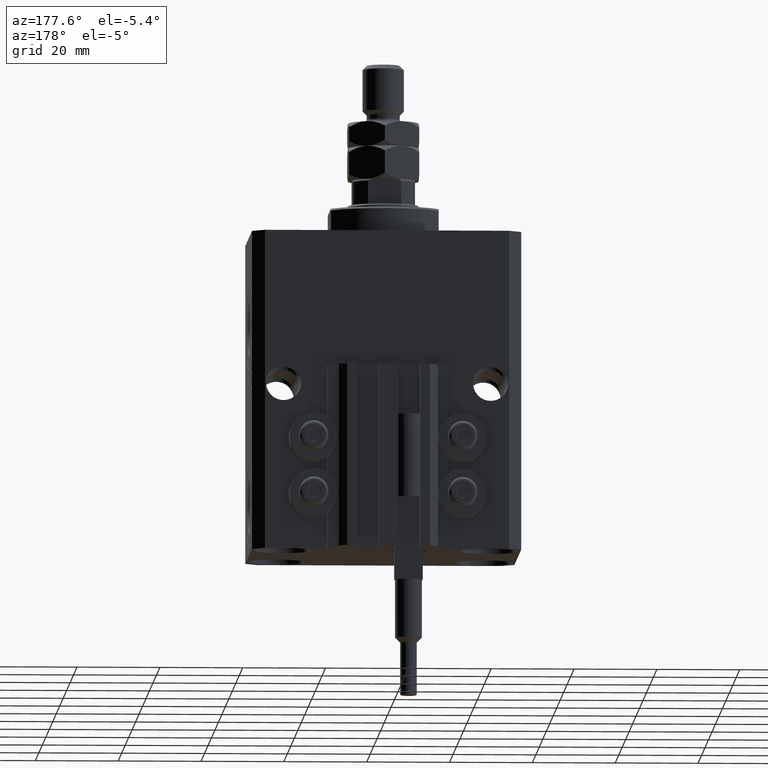
[diagram: clean part render]
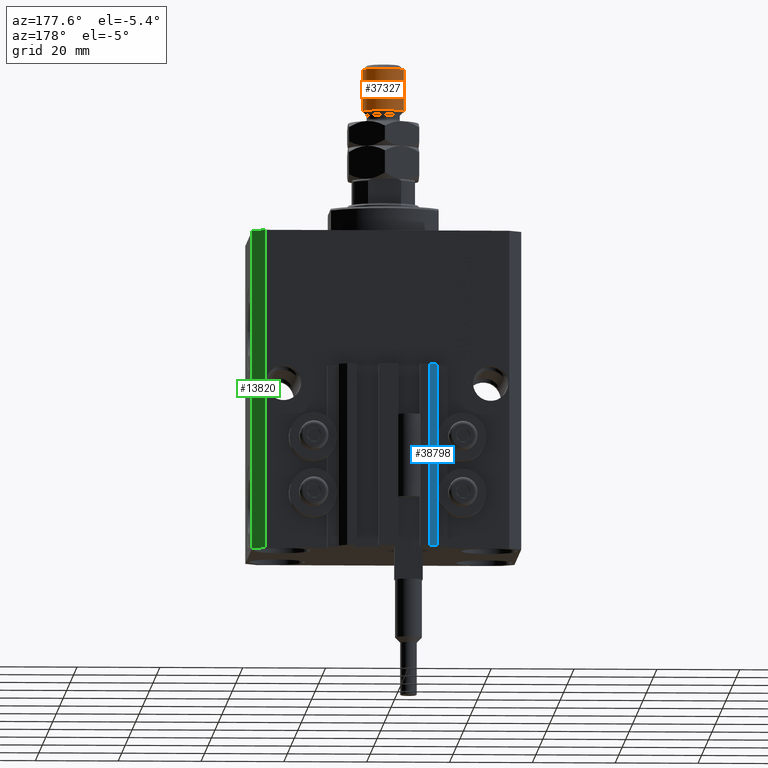
[diagram: same view with three faces highlighted in distinct colors, each labeled with its STEP entity id]
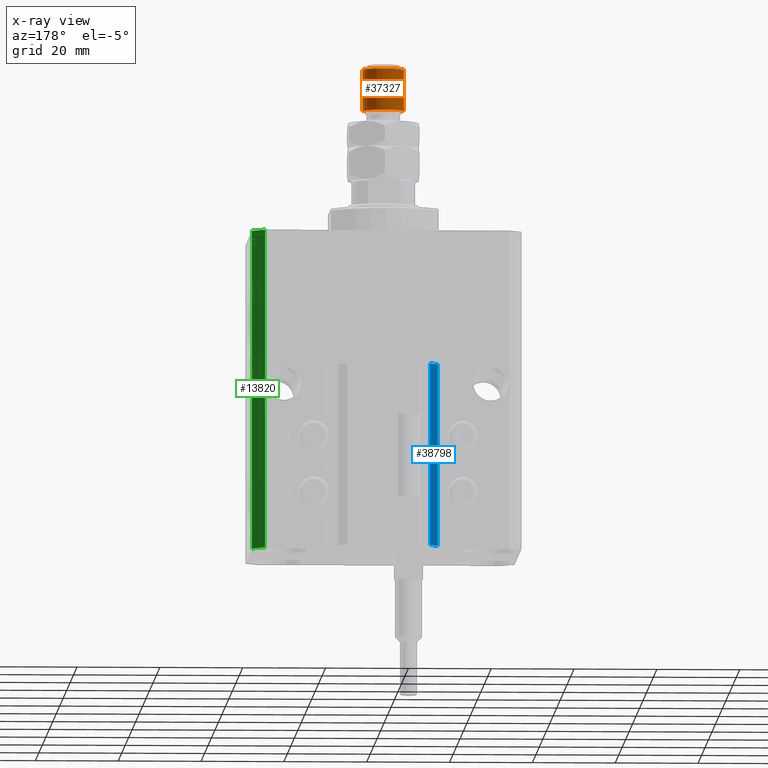
[diagram: x-ray of the same camera — body ghosted, the three highlighted faces saturated]
A machine part, auxiliary view with three faces highlighted in distinct colors.
The next image is the same camera in x-ray (body ghosted, the three faces saturated) — at least one of them is partly hidden behind the body in this view.
Their STEP definitions:

[orange] entity #37327 — the highlighted cylindrical surface (edge-blend (fillet) strip) has radius 5 mm, axis along (-0, -0, -1).
#1068 = VERTEX_POINT ( 'NONE', #7676 ) ;
#2580 = ORIENTED_EDGE ( 'NONE', *, *, #39168, .T. ) ;
#2981 = DIRECTION ( 'NONE',  ( 1.000000000000000000, 0.000000000000000000, 0.000000000000000000 ) ) ;
#5606 = DIRECTION ( 'NONE',  ( -0.000000000000000000, -0.000000000000000000, 1.000000000000000000 ) ) ;
#6099 = CARTESIAN_POINT ( 'NONE',  ( 0.000000000000000000, 0.000000000000000000, 17.00000000000000355 ) ) ;
#6978 = DIRECTION ( 'NONE',  ( 0.000000000000000000, 0.000000000000000000, -1.000000000000000000 ) ) ;
#7521 = CIRCLE ( 'NONE', #46794, 5.000000000000000000 ) ;
#7676 = CARTESIAN_POINT ( 'NONE',  ( -5.000000000000000000, 0.000000000000000000, 26.99999999999998934 ) ) ;
#8385 = FACE_OUTER_BOUND ( 'NONE', #21922, .T. ) ;
#8635 = CARTESIAN_POINT ( 'NONE',  ( 0.000000000000000000, 0.000000000000000000, 28.00000000000000000 ) ) ;
#10192 = LINE ( 'NONE', #29261, #42716 ) ;
#13836 = DIRECTION ( 'NONE',  ( 1.000000000000000000, 0.000000000000000000, 0.000000000000000000 ) ) ;
#15119 = DIRECTION ( 'NONE',  ( -0.000000000000000000, -0.000000000000000000, -1.000000000000000000 ) ) ;
#16355 = CARTESIAN_POINT ( 'NONE',  ( 5.000000000000000000, 6.123233995736766282E-16, 17.00000000000000355 ) ) ;
#17624 = CARTESIAN_POINT ( 'NONE',  ( -5.000000000000000000, 0.000000000000000000, 17.00000000000000355 ) ) ;
#17914 = VERTEX_POINT ( 'NONE', #17624 ) ;
#17931 = ORIENTED_EDGE ( 'NONE', *, *, #47398, .T. ) ;
#18237 = CARTESIAN_POINT ( 'NONE',  ( 0.000000000000000000, 0.000000000000000000, 26.99999999999998934 ) ) ;
#21477 = DIRECTION ( 'NONE',  ( -0.000000000000000000, -0.000000000000000000, -1.000000000000000000 ) ) ;
#21655 = EDGE_CURVE ( 'NONE', #1068, #17914, #10192, .T. ) ;
#21922 = EDGE_LOOP ( 'NONE', ( #17931, #2580, #45349, #35651 ) ) ;
#25704 = AXIS2_PLACEMENT_3D ( 'NONE', #18237, #6978, #2981 ) ;
#26498 = DIRECTION ( 'NONE',  ( -0.000000000000000000, -0.000000000000000000, -1.000000000000000000 ) ) ;
#27806 = EDGE_CURVE ( 'NONE', #30488, #17914, #7521, .T. ) ;
#28112 = CARTESIAN_POINT ( 'NONE',  ( 5.000000000000000000, 6.123233995736766282E-16, 26.99999999999998934 ) ) ;
#29261 = CARTESIAN_POINT ( 'NONE',  ( -5.000000000000000000, 0.000000000000000000, 28.00000000000000000 ) ) ;
#30431 = DIRECTION ( 'NONE',  ( -1.000000000000000000, 0.000000000000000000, 0.000000000000000000 ) ) ;
#30488 = VERTEX_POINT ( 'NONE', #16355 ) ;
#33531 = VERTEX_POINT ( 'NONE', #28112 ) ;
#34031 = LINE ( 'NONE', #45531, #41300 ) ;
#35651 = ORIENTED_EDGE ( 'NONE', *, *, #21655, .F. ) ;
#37327 = ADVANCED_FACE ( 'NONE', ( #8385 ), #41937, .T. ) ;
#39168 = EDGE_CURVE ( 'NONE', #33531, #30488, #34031, .T. ) ;
#41300 = VECTOR ( 'NONE', #26498, 1000.000000000000000 ) ;
#41937 = CYLINDRICAL_SURFACE ( 'NONE', #45218, 5.000000000000000000 ) ;
#42528 = CIRCLE ( 'NONE', #25704, 5.000000000000000000 ) ;
#42716 = VECTOR ( 'NONE', #21477, 1000.000000000000000 ) ;
#45218 = AXIS2_PLACEMENT_3D ( 'NONE', #8635, #15119, #30431 ) ;
#45349 = ORIENTED_EDGE ( 'NONE', *, *, #27806, .T. ) ;
#45531 = CARTESIAN_POINT ( 'NONE',  ( 5.000000000000000000, 6.123233995736766282E-16, 28.00000000000000000 ) ) ;
#46794 = AXIS2_PLACEMENT_3D ( 'NONE', #6099, #5606, #13836 ) ;
#47398 = EDGE_CURVE ( 'NONE', #1068, #33531, #42528, .T. ) ;

[blue] entity #38798 — the highlighted planar face has unit normal (-0.7071, 0.7071, 0).
#874 = CARTESIAN_POINT ( 'NONE',  ( -12.00000000000000000, 28.49999999999948841, -33.00000000000000000 ) ) ;
#1626 = DIRECTION ( 'NONE',  ( 0.000000000000000000, 0.000000000000000000, 1.000000000000000000 ) ) ;
#3434 = CARTESIAN_POINT ( 'NONE',  ( -10.00000000000000000, 30.49999999999948841, -33.00000000000000000 ) ) ;
#5007 = CARTESIAN_POINT ( 'NONE',  ( -12.00000000000000000, 28.49999999999948841, -77.00000000000000000 ) ) ;
#5491 = CARTESIAN_POINT ( 'NONE',  ( -10.00000000000000000, 30.49999999999948841, -77.00000000000000000 ) ) ;
#6337 = EDGE_CURVE ( 'NONE', #12470, #26550, #37755, .T. ) ;
#6426 = LINE ( 'NONE', #13229, #16021 ) ;
#6707 = DIRECTION ( 'NONE',  ( -0.7071067811865472397, -0.7071067811865479058, 0.000000000000000000 ) ) ;
#7517 = ORIENTED_EDGE ( 'NONE', *, *, #16720, .T. ) ;
#9206 = EDGE_CURVE ( 'NONE', #42078, #12470, #24421, .T. ) ;
#10526 = PLANE ( 'NONE',  #41185 ) ;
#12470 = VERTEX_POINT ( 'NONE', #39798 ) ;
#13229 = CARTESIAN_POINT ( 'NONE',  ( -10.00000000000000000, 30.49999999999948841, -77.00000000000000000 ) ) ;
#13357 = DIRECTION ( 'NONE',  ( -0.7071067811865479058, 0.7071067811865472397, 0.000000000000000000 ) ) ;
#13700 = DIRECTION ( 'NONE',  ( -0.7071067811865472397, -0.7071067811865479058, 0.000000000000000000 ) ) ;
#15248 = EDGE_CURVE ( 'NONE', #22485, #26550, #35080, .T. ) ;
#15930 = VECTOR ( 'NONE', #6707, 999.9999999999998863 ) ;
#16019 = DIRECTION ( 'NONE',  ( 0.000000000000000000, 0.000000000000000000, 1.000000000000000000 ) ) ;
#16021 = VECTOR ( 'NONE', #13700, 999.9999999999998863 ) ;
#16636 = EDGE_LOOP ( 'NONE', ( #24481, #27598, #7517, #22405 ) ) ;
#16720 = EDGE_CURVE ( 'NONE', #42078, #22485, #6426, .T. ) ;
#22405 = ORIENTED_EDGE ( 'NONE', *, *, #15248, .T. ) ;
#22485 = VERTEX_POINT ( 'NONE', #43129 ) ;
#24421 = LINE ( 'NONE', #39712, #32676 ) ;
#24481 = ORIENTED_EDGE ( 'NONE', *, *, #6337, .F. ) ;
#25107 = DIRECTION ( 'NONE',  ( -0.7071067811865472397, -0.7071067811865479058, 0.000000000000000000 ) ) ;
#26550 = VERTEX_POINT ( 'NONE', #874 ) ;
#27598 = ORIENTED_EDGE ( 'NONE', *, *, #9206, .F. ) ;
#31966 = VECTOR ( 'NONE', #16019, 1000.000000000000000 ) ;
#32402 = CARTESIAN_POINT ( 'NONE',  ( -10.00000000000000000, 30.49999999999948841, -77.00000000000000000 ) ) ;
#32676 = VECTOR ( 'NONE', #1626, 1000.000000000000000 ) ;
#35080 = LINE ( 'NONE', #5007, #31966 ) ;
#37755 = LINE ( 'NONE', #3434, #15930 ) ;
#38798 = ADVANCED_FACE ( 'NONE', ( #44865 ), #10526, .T. ) ;
#39712 = CARTESIAN_POINT ( 'NONE',  ( -10.00000000000000000, 30.49999999999948841, -77.00000000000000000 ) ) ;
#39798 = CARTESIAN_POINT ( 'NONE',  ( -10.00000000000000000, 30.49999999999948841, -33.00000000000000000 ) ) ;
#41185 = AXIS2_PLACEMENT_3D ( 'NONE', #32402, #13357, #25107 ) ;
#42078 = VERTEX_POINT ( 'NONE', #5491 ) ;
#43129 = CARTESIAN_POINT ( 'NONE',  ( -12.00000000000000000, 28.49999999999948841, -77.00000000000000000 ) ) ;
#44865 = FACE_OUTER_BOUND ( 'NONE', #16636, .T. ) ;

[green] entity #13820 — the highlighted planar face has unit normal (0.7071, 0.7071, 0).
#129 = ORIENTED_EDGE ( 'NONE', *, *, #4664, .T. ) ;
#202 = DIRECTION ( 'NONE',  ( 0.000000000000000000, 0.000000000000000000, 1.000000000000000000 ) ) ;
#223 = LINE ( 'NONE', #12257, #24688 ) ;
#594 = FACE_OUTER_BOUND ( 'NONE', #35681, .T. ) ;
#4664 = EDGE_CURVE ( 'NONE', #31759, #34664, #223, .T. ) ;
#6029 = VECTOR ( 'NONE', #202, 1000.000000000000000 ) ;
#7118 = CARTESIAN_POINT ( 'NONE',  ( 29.49999999999707967, 22.49999999999951328, -77.00000000000000000 ) ) ;
#7249 = VERTEX_POINT ( 'NONE', #12436 ) ;
#10933 = AXIS2_PLACEMENT_3D ( 'NONE', #31169, #15856, #42936 ) ;
#12257 = CARTESIAN_POINT ( 'NONE',  ( 32.49999999999702993, 19.49999999999945999, -77.00000000000000000 ) ) ;
#12415 = VECTOR ( 'NONE', #41559, 1000.000000000000000 ) ;
#12436 = CARTESIAN_POINT ( 'NONE',  ( 32.49999999999702993, 19.49999999999945999, 0.000000000000000000 ) ) ;
#13820 = ADVANCED_FACE ( 'NONE', ( #594 ), #39422, .T. ) ;
#14633 = DIRECTION ( 'NONE',  ( 0.000000000000000000, 0.000000000000000000, 1.000000000000000000 ) ) ;
#15856 = DIRECTION ( 'NONE',  ( 0.7071067811865598962, 0.7071067811865351382, -0.000000000000000000 ) ) ;
#18942 = CARTESIAN_POINT ( 'NONE',  ( 29.49999999999707967, 22.49999999999951328, -77.00000000000000000 ) ) ;
#24688 = VECTOR ( 'NONE', #27555, 1000.000000000000000 ) ;
#26026 = VECTOR ( 'NONE', #14633, 1000.000000000000000 ) ;
#27555 = DIRECTION ( 'NONE',  ( -0.7071067811865352493, 0.7071067811865597852, 0.000000000000000000 ) ) ;
#27884 = VERTEX_POINT ( 'NONE', #49380 ) ;
#29340 = CARTESIAN_POINT ( 'NONE',  ( 32.49999999999702993, 19.49999999999945999, 0.000000000000000000 ) ) ;
#31169 = CARTESIAN_POINT ( 'NONE',  ( 32.49999999999702993, 19.49999999999945999, -77.00000000000000000 ) ) ;
#31759 = VERTEX_POINT ( 'NONE', #49385 ) ;
#33216 = LINE ( 'NONE', #7118, #26026 ) ;
#34574 = ORIENTED_EDGE ( 'NONE', *, *, #37105, .T. ) ;
#34664 = VERTEX_POINT ( 'NONE', #18942 ) ;
#35624 = EDGE_CURVE ( 'NONE', #7249, #27884, #41078, .T. ) ;
#35681 = EDGE_LOOP ( 'NONE', ( #39530, #42007, #129, #34574 ) ) ;
#37105 = EDGE_CURVE ( 'NONE', #34664, #27884, #33216, .T. ) ;
#39422 = PLANE ( 'NONE',  #10933 ) ;
#39530 = ORIENTED_EDGE ( 'NONE', *, *, #35624, .F. ) ;
#39921 = EDGE_CURVE ( 'NONE', #31759, #7249, #45310, .T. ) ;
#41078 = LINE ( 'NONE', #29340, #12415 ) ;
#41559 = DIRECTION ( 'NONE',  ( -0.7071067811865352493, 0.7071067811865597852, 0.000000000000000000 ) ) ;
#42007 = ORIENTED_EDGE ( 'NONE', *, *, #39921, .F. ) ;
#42936 = DIRECTION ( 'NONE',  ( -0.7071067811865351382, 0.7071067811865598962, 0.000000000000000000 ) ) ;
#45058 = CARTESIAN_POINT ( 'NONE',  ( 32.49999999999702993, 19.49999999999945999, -77.00000000000000000 ) ) ;
#45310 = LINE ( 'NONE', #45058, #6029 ) ;
#49380 = CARTESIAN_POINT ( 'NONE',  ( 29.49999999999707967, 22.49999999999951328, 0.000000000000000000 ) ) ;
#49385 = CARTESIAN_POINT ( 'NONE',  ( 32.49999999999702993, 19.49999999999945999, -77.00000000000000000 ) ) ;